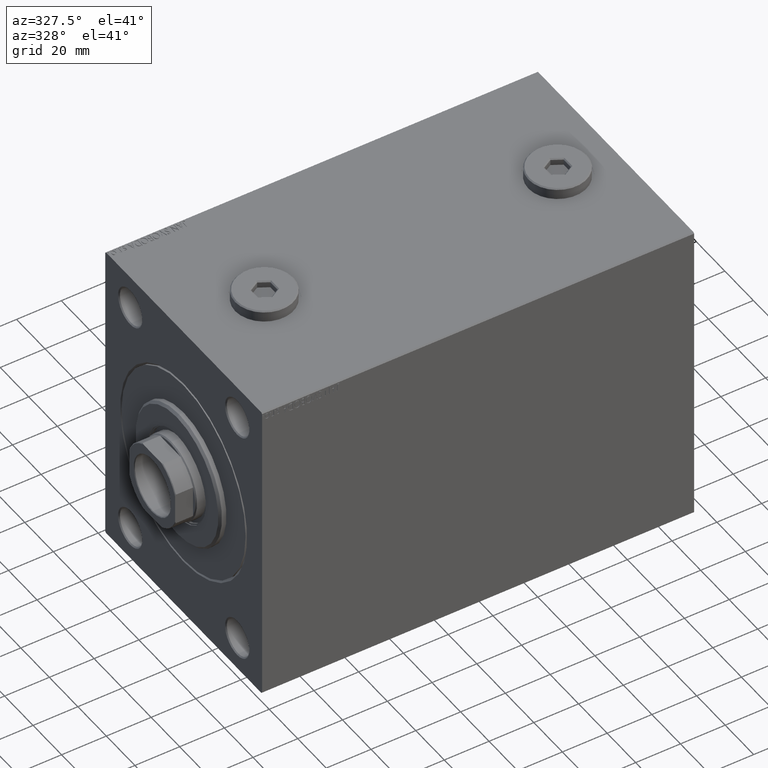
[diagram: clean part render]
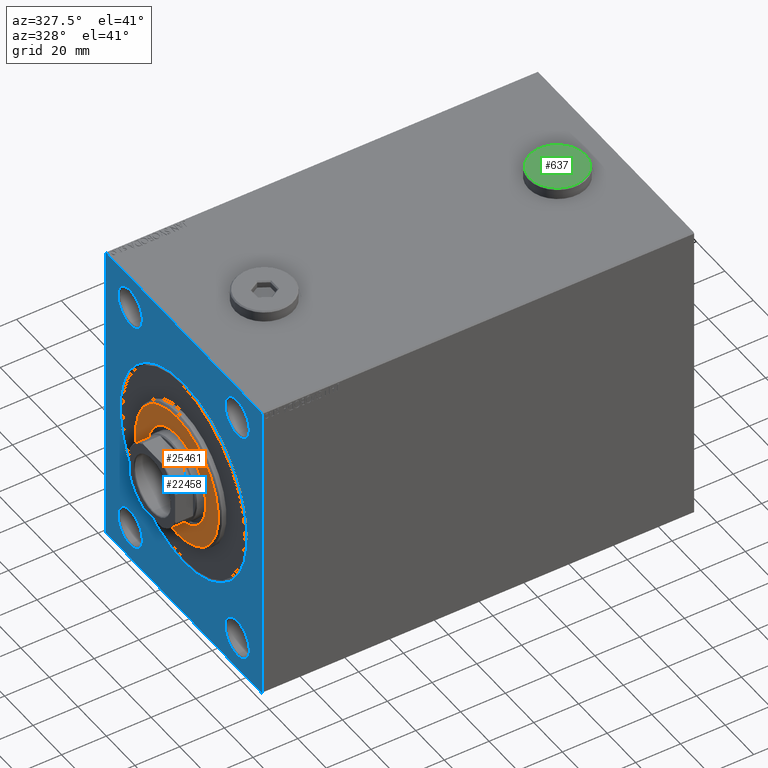
[diagram: same view with three faces highlighted in distinct colors, each labeled with its STEP entity id]
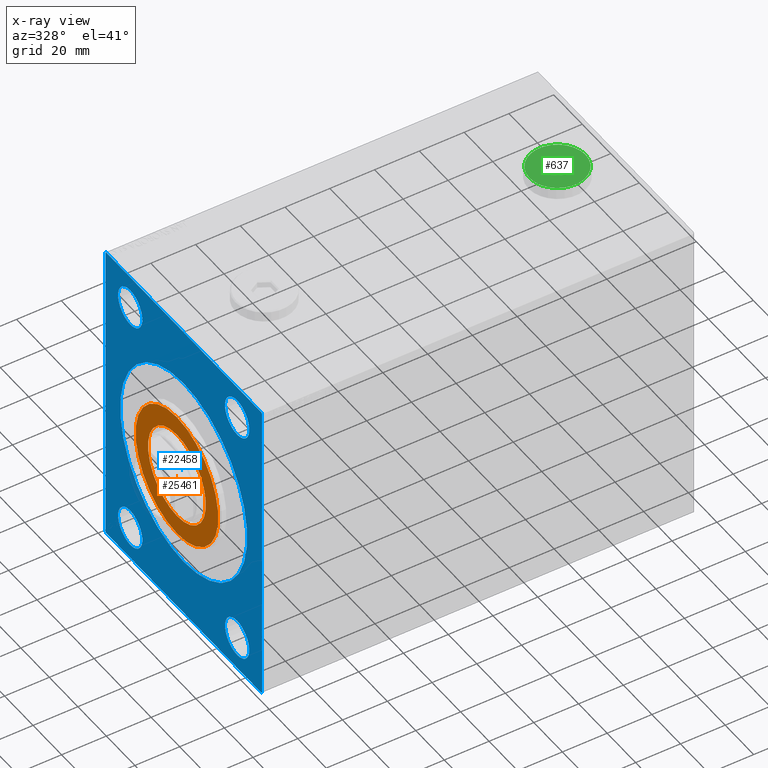
[diagram: x-ray of the same camera — body ghosted, the three highlighted faces saturated]
A machine part, auxiliary view with three faces highlighted in distinct colors.
The next image is the same camera in x-ray (body ghosted, the three faces saturated) — at least one of them is partly hidden behind the body in this view.
Their STEP definitions:

[orange] entity #25461 — the highlighted planar face has unit normal (-1, 0, 0).
#613 = AXIS2_PLACEMENT_3D ( 'NONE', #18471, #31902, #10842 ) ;
#742 = CIRCLE ( 'NONE', #6647, 20.25000000000000000 ) ;
#1898 = EDGE_CURVE ( 'NONE', #32579, #18394, #27860, .T. ) ;
#2217 = EDGE_CURVE ( 'NONE', #10055, #18712, #15296, .T. ) ;
#2519 = AXIS2_PLACEMENT_3D ( 'NONE', #30121, #37722, #12539 ) ;
#5453 = DIRECTION ( 'NONE',  ( 0.000000000000000000, 0.000000000000000000, -1.000000000000000000 ) ) ;
#6302 = EDGE_LOOP ( 'NONE', ( #41375, #17548 ) ) ;
#6647 = AXIS2_PLACEMENT_3D ( 'NONE', #22111, #8932, #5453 ) ;
#8932 = DIRECTION ( 'NONE',  ( 1.000000000000000000, 0.000000000000000000, 0.000000000000000000 ) ) ;
#9088 = DIRECTION ( 'NONE',  ( 1.000000000000000000, -0.000000000000000000, 0.000000000000000000 ) ) ;
#9521 = FACE_BOUND ( 'NONE', #6302, .T. ) ;
#10055 = VERTEX_POINT ( 'NONE', #13254 ) ;
#10842 = DIRECTION ( 'NONE',  ( 0.000000000000000000, 0.000000000000000000, -1.000000000000000000 ) ) ;
#12539 = DIRECTION ( 'NONE',  ( 0.000000000000000000, 0.000000000000000000, -1.000000000000000000 ) ) ;
#13254 = CARTESIAN_POINT ( 'NONE',  ( 3.000000000000000000, 0.000000000000000000, -20.25000000000000000 ) ) ;
#13793 = ORIENTED_EDGE ( 'NONE', *, *, #1898, .T. ) ;
#14477 = EDGE_CURVE ( 'NONE', #18712, #10055, #742, .T. ) ;
#15296 = CIRCLE ( 'NONE', #38934, 20.25000000000000000 ) ;
#17548 = ORIENTED_EDGE ( 'NONE', *, *, #14477, .F. ) ;
#18394 = VERTEX_POINT ( 'NONE', #38896 ) ;
#18471 = CARTESIAN_POINT ( 'NONE',  ( 3.000000000000000000, 0.000000000000000000, 0.000000000000000000 ) ) ;
#18712 = VERTEX_POINT ( 'NONE', #30938 ) ;
#20560 = CARTESIAN_POINT ( 'NONE',  ( 3.000000000000000000, 0.000000000000000000, 0.000000000000000000 ) ) ;
#22111 = CARTESIAN_POINT ( 'NONE',  ( 3.000000000000000000, 0.000000000000000000, 0.000000000000000000 ) ) ;
#22903 = CARTESIAN_POINT ( 'NONE',  ( 3.000000000000000000, 3.612708057484691604E-15, -28.99999999999999289 ) ) ;
#23426 = AXIS2_PLACEMENT_3D ( 'NONE', #37964, #9088, #40531 ) ;
#24738 = DIRECTION ( 'NONE',  ( 1.000000000000000000, 0.000000000000000000, 0.000000000000000000 ) ) ;
#25461 = ADVANCED_FACE ( 'NONE', ( #43971, #9521 ), #33584, .T. ) ;
#27860 = CIRCLE ( 'NONE', #23426, 28.99999999999999289 ) ;
#30121 = CARTESIAN_POINT ( 'NONE',  ( 3.000000000000000000, 0.000000000000000000, 0.000000000000000000 ) ) ;
#30938 = CARTESIAN_POINT ( 'NONE',  ( 3.000000000000000000, 2.479909768273390300E-15, 20.25000000000000000 ) ) ;
#31902 = DIRECTION ( 'NONE',  ( 1.000000000000000000, -0.000000000000000000, 0.000000000000000000 ) ) ;
#32579 = VERTEX_POINT ( 'NONE', #22903 ) ;
#33584 = PLANE ( 'NONE',  #2519 ) ;
#37504 = CIRCLE ( 'NONE', #613, 28.99999999999999289 ) ;
#37722 = DIRECTION ( 'NONE',  ( 1.000000000000000000, -0.000000000000000000, 0.000000000000000000 ) ) ;
#37964 = CARTESIAN_POINT ( 'NONE',  ( 3.000000000000000000, 0.000000000000000000, 0.000000000000000000 ) ) ;
#38896 = CARTESIAN_POINT ( 'NONE',  ( 3.000000000000000000, 0.000000000000000000, 28.99999999999999289 ) ) ;
#38934 = AXIS2_PLACEMENT_3D ( 'NONE', #20560, #24738, #42290 ) ;
#39113 = EDGE_LOOP ( 'NONE', ( #43557, #13793 ) ) ;
#40531 = DIRECTION ( 'NONE',  ( 0.000000000000000000, 0.000000000000000000, -1.000000000000000000 ) ) ;
#41375 = ORIENTED_EDGE ( 'NONE', *, *, #2217, .F. ) ;
#42290 = DIRECTION ( 'NONE',  ( 0.000000000000000000, 0.000000000000000000, -1.000000000000000000 ) ) ;
#42967 = EDGE_CURVE ( 'NONE', #18394, #32579, #37504, .T. ) ;
#43557 = ORIENTED_EDGE ( 'NONE', *, *, #42967, .T. ) ;
#43971 = FACE_OUTER_BOUND ( 'NONE', #39113, .T. ) ;

[blue] entity #22458 — the highlighted planar face has unit normal (1, 0, 0).
#99 = DIRECTION ( 'NONE',  ( 0.000000000000000000, 0.000000000000000000, -1.000000000000000000 ) ) ;
#1010 = EDGE_LOOP ( 'NONE', ( #11575, #20941 ) ) ;
#1025 = EDGE_LOOP ( 'NONE', ( #27797, #28827 ) ) ;
#1035 = VECTOR ( 'NONE', #16923, 1000.000000000000000 ) ;
#1544 = ORIENTED_EDGE ( 'NONE', *, *, #23967, .F. ) ;
#1575 = AXIS2_PLACEMENT_3D ( 'NONE', #17388, #38660, #6995 ) ;
#1642 = CIRCLE ( 'NONE', #19351, 44.49999999999995737 ) ;
#2286 = DIRECTION ( 'NONE',  ( 0.000000000000000000, 1.000000000000000000, 1.261617073437677752E-16 ) ) ;
#2428 = VERTEX_POINT ( 'NONE', #32609 ) ;
#2933 = CARTESIAN_POINT ( 'NONE',  ( 0.000000000000000000, 0.000000000000000000, 0.000000000000000000 ) ) ;
#3054 = DIRECTION ( 'NONE',  ( 1.000000000000000000, 0.000000000000000000, 0.000000000000000000 ) ) ;
#3310 = CARTESIAN_POINT ( 'NONE',  ( 0.000000000000000000, -55.00000000000000000, 69.49999999999997158 ) ) ;
#3543 = CARTESIAN_POINT ( 'NONE',  ( 0.000000000000000000, -37.49999999999999289, 55.00000000000000711 ) ) ;
#3569 = DIRECTION ( 'NONE',  ( 1.000000000000000000, 0.000000000000000000, 0.000000000000000000 ) ) ;
#3974 = ORIENTED_EDGE ( 'NONE', *, *, #23460, .T. ) ;
#4300 = CARTESIAN_POINT ( 'NONE',  ( 0.000000000000000000, -37.49999999999999289, -54.99999999999999289 ) ) ;
#4425 = CIRCLE ( 'NONE', #27321, 8.500000000000007105 ) ;
#4508 = ORIENTED_EDGE ( 'NONE', *, *, #23666, .F. ) ;
#4574 = CARTESIAN_POINT ( 'NONE',  ( 0.000000000000000000, -55.00000000000000000, -69.50000000000000000 ) ) ;
#5718 = PLANE ( 'NONE',  #37170 ) ;
#6201 = CARTESIAN_POINT ( 'NONE',  ( 0.000000000000000000, 54.49999999999996447, 70.00000000000001421 ) ) ;
#6371 = EDGE_CURVE ( 'NONE', #23874, #42671, #30785, .T. ) ;
#6393 = FACE_BOUND ( 'NONE', #8249, .T. ) ;
#6562 = ORIENTED_EDGE ( 'NONE', *, *, #24139, .T. ) ;
#6649 = ORIENTED_EDGE ( 'NONE', *, *, #8415, .T. ) ;
#6700 = DIRECTION ( 'NONE',  ( 0.000000000000000000, 0.000000000000000000, -1.000000000000000000 ) ) ;
#6995 = DIRECTION ( 'NONE',  ( 0.000000000000000000, 0.000000000000000000, -1.000000000000000000 ) ) ;
#7171 = AXIS2_PLACEMENT_3D ( 'NONE', #4300, #28354, #11681 ) ;
#7400 = VERTEX_POINT ( 'NONE', #43705 ) ;
#7815 = CARTESIAN_POINT ( 'NONE',  ( 0.000000000000000000, 55.00000000000000711, -69.99999999999998579 ) ) ;
#7913 = DIRECTION ( 'NONE',  ( 0.000000000000000000, 0.000000000000000000, -1.000000000000000000 ) ) ;
#8136 = ORIENTED_EDGE ( 'NONE', *, *, #24119, .T. ) ;
#8249 = EDGE_LOOP ( 'NONE', ( #6649, #6562 ) ) ;
#8415 = EDGE_CURVE ( 'NONE', #16063, #7400, #4425, .T. ) ;
#8466 = DIRECTION ( 'NONE',  ( 0.000000000000000000, 0.000000000000000000, -1.000000000000000000 ) ) ;
#8861 = EDGE_CURVE ( 'NONE', #40252, #42671, #12005, .T. ) ;
#9187 = FACE_OUTER_BOUND ( 'NONE', #14493, .T. ) ;
#9404 = EDGE_CURVE ( 'NONE', #11180, #20342, #39125, .T. ) ;
#9640 = DIRECTION ( 'NONE',  ( 0.000000000000000000, 0.000000000000000000, -1.000000000000000000 ) ) ;
#9929 = CIRCLE ( 'NONE', #42413, 8.500000000000007105 ) ;
#10157 = CARTESIAN_POINT ( 'NONE',  ( 0.000000000000000000, 37.50000000000000000, 55.00000000000000711 ) ) ;
#10521 = DIRECTION ( 'NONE',  ( 1.000000000000000000, 0.000000000000000000, 0.000000000000000000 ) ) ;
#10710 = AXIS2_PLACEMENT_3D ( 'NONE', #3543, #21778, #31522 ) ;
#11180 = VERTEX_POINT ( 'NONE', #21940 ) ;
#11360 = VECTOR ( 'NONE', #6700, 1000.000000000000000 ) ;
#11575 = ORIENTED_EDGE ( 'NONE', *, *, #18496, .T. ) ;
#11681 = DIRECTION ( 'NONE',  ( 0.000000000000000000, 0.000000000000000000, -1.000000000000000000 ) ) ;
#12005 = LINE ( 'NONE', #36971, #36923 ) ;
#12642 = CARTESIAN_POINT ( 'NONE',  ( 0.000000000000000000, 37.50000000000000000, -46.49999999999998579 ) ) ;
#13011 = VERTEX_POINT ( 'NONE', #33617 ) ;
#13201 = DIRECTION ( 'NONE',  ( 0.000000000000000000, -0.7071067811865230368, -0.7071067811865721087 ) ) ;
#13449 = CARTESIAN_POINT ( 'NONE',  ( 0.000000000000000000, 54.99999999999999289, 70.00000000000001421 ) ) ;
#14052 = DIRECTION ( 'NONE',  ( -0.000000000000000000, 0.7071067811865672237, -0.7071067811865279218 ) ) ;
#14068 = AXIS2_PLACEMENT_3D ( 'NONE', #18371, #10521, #29022 ) ;
#14280 = LINE ( 'NONE', #6201, #44033 ) ;
#14493 = EDGE_LOOP ( 'NONE', ( #1544, #32695, #4508, #14737, #17379, #40226, #14613, #3974 ) ) ;
#14546 = CARTESIAN_POINT ( 'NONE',  ( 0.000000000000000000, 0.000000000000000000, 44.49999999999995737 ) ) ;
#14605 = ORIENTED_EDGE ( 'NONE', *, *, #31227, .T. ) ;
#14613 = ORIENTED_EDGE ( 'NONE', *, *, #8861, .F. ) ;
#14737 = ORIENTED_EDGE ( 'NONE', *, *, #38198, .T. ) ;
#15667 = EDGE_CURVE ( 'NONE', #39339, #24929, #16287, .T. ) ;
#15929 = EDGE_CURVE ( 'NONE', #13011, #42414, #36268, .T. ) ;
#16063 = VERTEX_POINT ( 'NONE', #40712 ) ;
#16287 = CIRCLE ( 'NONE', #14068, 8.500000000000007105 ) ;
#16923 = DIRECTION ( 'NONE',  ( 0.000000000000000000, -1.000000000000000000, -1.261617073437677999E-16 ) ) ;
#17005 = ORIENTED_EDGE ( 'NONE', *, *, #15667, .T. ) ;
#17136 = DIRECTION ( 'NONE',  ( 0.000000000000000000, 0.000000000000000000, -1.000000000000000000 ) ) ;
#17379 = ORIENTED_EDGE ( 'NONE', *, *, #44476, .F. ) ;
#17388 = CARTESIAN_POINT ( 'NONE',  ( 0.000000000000000000, -37.49999999999999289, -54.99999999999999289 ) ) ;
#17694 = CARTESIAN_POINT ( 'NONE',  ( 0.000000000000000000, -54.49999999999997158, -70.00000000000000000 ) ) ;
#18052 = CARTESIAN_POINT ( 'NONE',  ( 0.000000000000000000, 37.50000000000000000, 55.00000000000000711 ) ) ;
#18313 = DIRECTION ( 'NONE',  ( -0.000000000000000000, 0.7071067811865328068, 0.7071067811865622277 ) ) ;
#18371 = CARTESIAN_POINT ( 'NONE',  ( 0.000000000000000000, 37.50000000000000000, -54.99999999999999289 ) ) ;
#18454 = LINE ( 'NONE', #7815, #41216 ) ;
#18496 = EDGE_CURVE ( 'NONE', #34344, #26943, #1642, .T. ) ;
#18624 = CARTESIAN_POINT ( 'NONE',  ( 0.000000000000000000, 37.50000000000000000, -63.50000000000000000 ) ) ;
#18724 = CIRCLE ( 'NONE', #30542, 8.500000000000007105 ) ;
#18841 = VERTEX_POINT ( 'NONE', #4574 ) ;
#19351 = AXIS2_PLACEMENT_3D ( 'NONE', #24578, #31749, #38662 ) ;
#19812 = FACE_BOUND ( 'NONE', #1025, .T. ) ;
#20342 = VERTEX_POINT ( 'NONE', #24847 ) ;
#20558 = DIRECTION ( 'NONE',  ( 0.000000000000000000, 0.000000000000000000, -1.000000000000000000 ) ) ;
#20941 = ORIENTED_EDGE ( 'NONE', *, *, #32113, .T. ) ;
#20958 = VECTOR ( 'NONE', #26952, 1000.000000000000000 ) ;
#21026 = CIRCLE ( 'NONE', #10710, 8.500000000000007105 ) ;
#21104 = CARTESIAN_POINT ( 'NONE',  ( 0.000000000000000000, 0.000000000000000000, 0.000000000000000000 ) ) ;
#21778 = DIRECTION ( 'NONE',  ( 1.000000000000000000, 0.000000000000000000, 0.000000000000000000 ) ) ;
#21940 = CARTESIAN_POINT ( 'NONE',  ( 0.000000000000000000, -55.00000000000000000, 69.49999999999997158 ) ) ;
#22237 = EDGE_LOOP ( 'NONE', ( #25955, #17005 ) ) ;
#22458 = ADVANCED_FACE ( 'NONE', ( #23515, #19812, #38060, #6393, #40846, #9187 ), #5718, .F. ) ;
#22497 = CARTESIAN_POINT ( 'NONE',  ( 0.000000000000000000, -37.49999999999999289, -46.49999999999998579 ) ) ;
#22528 = VERTEX_POINT ( 'NONE', #41067 ) ;
#23017 = CARTESIAN_POINT ( 'NONE',  ( 0.000000000000000000, 54.99999999999999289, 69.50000000000001421 ) ) ;
#23438 = VERTEX_POINT ( 'NONE', #23017 ) ;
#23460 = EDGE_CURVE ( 'NONE', #40252, #18841, #27626, .T. ) ;
#23515 = FACE_BOUND ( 'NONE', #1010, .T. ) ;
#23666 = EDGE_CURVE ( 'NONE', #33137, #20342, #45117, .T. ) ;
#23874 = VERTEX_POINT ( 'NONE', #40918 ) ;
#23967 = EDGE_CURVE ( 'NONE', #11180, #18841, #32757, .T. ) ;
#24119 = EDGE_CURVE ( 'NONE', #2428, #22528, #43101, .T. ) ;
#24139 = EDGE_CURVE ( 'NONE', #7400, #16063, #18724, .T. ) ;
#24267 = DIRECTION ( 'NONE',  ( 1.000000000000000000, 0.000000000000000000, 0.000000000000000000 ) ) ;
#24272 = VECTOR ( 'NONE', #13201, 1000.000000000000000 ) ;
#24342 = VECTOR ( 'NONE', #18313, 1000.000000000000000 ) ;
#24578 = CARTESIAN_POINT ( 'NONE',  ( 0.000000000000000000, 0.000000000000000000, 0.000000000000000000 ) ) ;
#24847 = CARTESIAN_POINT ( 'NONE',  ( 0.000000000000000000, -54.49999999999999289, 70.00000000000000000 ) ) ;
#24929 = VERTEX_POINT ( 'NONE', #12642 ) ;
#25955 = ORIENTED_EDGE ( 'NONE', *, *, #26126, .T. ) ;
#26126 = EDGE_CURVE ( 'NONE', #24929, #39339, #9929, .T. ) ;
#26160 = CARTESIAN_POINT ( 'NONE',  ( 0.000000000000000000, 54.50000000000001421, -69.99999999999998579 ) ) ;
#26277 = AXIS2_PLACEMENT_3D ( 'NONE', #21104, #28515, #7913 ) ;
#26943 = VERTEX_POINT ( 'NONE', #30879 ) ;
#26952 = DIRECTION ( 'NONE',  ( -0.000000000000000000, -0.7071067811865672237, 0.7071067811865279218 ) ) ;
#27321 = AXIS2_PLACEMENT_3D ( 'NONE', #18052, #3054, #17136 ) ;
#27626 = LINE ( 'NONE', #45395, #20958 ) ;
#27676 = DIRECTION ( 'NONE',  ( 1.000000000000000000, 0.000000000000000000, 0.000000000000000000 ) ) ;
#27797 = ORIENTED_EDGE ( 'NONE', *, *, #41072, .T. ) ;
#28354 = DIRECTION ( 'NONE',  ( 1.000000000000000000, 0.000000000000000000, 0.000000000000000000 ) ) ;
#28515 = DIRECTION ( 'NONE',  ( 1.000000000000000000, 0.000000000000000000, 0.000000000000000000 ) ) ;
#28827 = ORIENTED_EDGE ( 'NONE', *, *, #15929, .T. ) ;
#29022 = DIRECTION ( 'NONE',  ( 0.000000000000000000, 0.000000000000000000, -1.000000000000000000 ) ) ;
#30139 = CARTESIAN_POINT ( 'NONE',  ( 0.000000000000000000, 54.49999999999996447, 70.00000000000001421 ) ) ;
#30542 = AXIS2_PLACEMENT_3D ( 'NONE', #10157, #24267, #8466 ) ;
#30682 = CIRCLE ( 'NONE', #26277, 44.49999999999995737 ) ;
#30785 = LINE ( 'NONE', #44870, #24272 ) ;
#30879 = CARTESIAN_POINT ( 'NONE',  ( 0.000000000000000000, 5.449678256205716459E-15, -44.49999999999995737 ) ) ;
#31227 = EDGE_CURVE ( 'NONE', #22528, #2428, #21026, .T. ) ;
#31442 = CARTESIAN_POINT ( 'NONE',  ( 0.000000000000000000, -37.49999999999999289, 55.00000000000000711 ) ) ;
#31522 = DIRECTION ( 'NONE',  ( 0.000000000000000000, 0.000000000000000000, -1.000000000000000000 ) ) ;
#31749 = DIRECTION ( 'NONE',  ( 1.000000000000000000, 0.000000000000000000, 0.000000000000000000 ) ) ;
#32113 = EDGE_CURVE ( 'NONE', #26943, #34344, #30682, .T. ) ;
#32609 = CARTESIAN_POINT ( 'NONE',  ( 0.000000000000000000, -37.49999999999999289, 63.50000000000001421 ) ) ;
#32695 = ORIENTED_EDGE ( 'NONE', *, *, #9404, .T. ) ;
#32757 = LINE ( 'NONE', #42055, #11360 ) ;
#33137 = VERTEX_POINT ( 'NONE', #30139 ) ;
#33617 = CARTESIAN_POINT ( 'NONE',  ( 0.000000000000000000, -37.49999999999999289, -63.50000000000000000 ) ) ;
#34344 = VERTEX_POINT ( 'NONE', #14546 ) ;
#35002 = AXIS2_PLACEMENT_3D ( 'NONE', #31442, #45507, #20558 ) ;
#35237 = CARTESIAN_POINT ( 'NONE',  ( 0.000000000000000000, 37.50000000000000000, -54.99999999999999289 ) ) ;
#36268 = CIRCLE ( 'NONE', #1575, 8.500000000000007105 ) ;
#36923 = VECTOR ( 'NONE', #2286, 1000.000000000000000 ) ;
#36971 = CARTESIAN_POINT ( 'NONE',  ( 0.000000000000000000, -55.00000000000000000, -70.00000000000000000 ) ) ;
#37170 = AXIS2_PLACEMENT_3D ( 'NONE', #2933, #27676, #9640 ) ;
#38060 = FACE_BOUND ( 'NONE', #45350, .T. ) ;
#38182 = CIRCLE ( 'NONE', #7171, 8.500000000000007105 ) ;
#38198 = EDGE_CURVE ( 'NONE', #33137, #23438, #14280, .T. ) ;
#38660 = DIRECTION ( 'NONE',  ( 1.000000000000000000, 0.000000000000000000, 0.000000000000000000 ) ) ;
#38662 = DIRECTION ( 'NONE',  ( 0.000000000000000000, 0.000000000000000000, -1.000000000000000000 ) ) ;
#39125 = LINE ( 'NONE', #3310, #24342 ) ;
#39258 = DIRECTION ( 'NONE',  ( 0.000000000000000000, -9.912705577010325549E-17, 1.000000000000000000 ) ) ;
#39339 = VERTEX_POINT ( 'NONE', #18624 ) ;
#40226 = ORIENTED_EDGE ( 'NONE', *, *, #6371, .T. ) ;
#40252 = VERTEX_POINT ( 'NONE', #17694 ) ;
#40712 = CARTESIAN_POINT ( 'NONE',  ( 0.000000000000000000, 37.50000000000000000, 63.50000000000001421 ) ) ;
#40846 = FACE_BOUND ( 'NONE', #22237, .T. ) ;
#40918 = CARTESIAN_POINT ( 'NONE',  ( 0.000000000000000000, 55.00000000000000711, -69.49999999999997158 ) ) ;
#41067 = CARTESIAN_POINT ( 'NONE',  ( 0.000000000000000000, -37.49999999999999289, 46.50000000000000000 ) ) ;
#41072 = EDGE_CURVE ( 'NONE', #42414, #13011, #38182, .T. ) ;
#41216 = VECTOR ( 'NONE', #39258, 1000.000000000000000 ) ;
#42055 = CARTESIAN_POINT ( 'NONE',  ( 0.000000000000000000, -55.00000000000000000, 70.00000000000000000 ) ) ;
#42413 = AXIS2_PLACEMENT_3D ( 'NONE', #35237, #3569, #99 ) ;
#42414 = VERTEX_POINT ( 'NONE', #22497 ) ;
#42671 = VERTEX_POINT ( 'NONE', #26160 ) ;
#43101 = CIRCLE ( 'NONE', #35002, 8.500000000000007105 ) ;
#43705 = CARTESIAN_POINT ( 'NONE',  ( 0.000000000000000000, 37.50000000000000000, 46.50000000000000000 ) ) ;
#44033 = VECTOR ( 'NONE', #14052, 1000.000000000000000 ) ;
#44476 = EDGE_CURVE ( 'NONE', #23874, #23438, #18454, .T. ) ;
#44870 = CARTESIAN_POINT ( 'NONE',  ( 0.000000000000000000, 55.00000000000000711, -69.49999999999997158 ) ) ;
#45117 = LINE ( 'NONE', #13449, #1035 ) ;
#45350 = EDGE_LOOP ( 'NONE', ( #8136, #14605 ) ) ;
#45395 = CARTESIAN_POINT ( 'NONE',  ( 0.000000000000000000, -54.49999999999997158, -70.00000000000000000 ) ) ;
#45507 = DIRECTION ( 'NONE',  ( 1.000000000000000000, 0.000000000000000000, 0.000000000000000000 ) ) ;

[green] entity #637 — the highlighted planar face has unit normal (0, 0, 1).
#28 = ORIENTED_EDGE ( 'NONE', *, *, #28273, .T. ) ;
#543 = EDGE_CURVE ( 'NONE', #3738, #11918, #32067, .T. ) ;
#637 = ADVANCED_FACE ( 'NONE', ( #1294, #22783 ), #11242, .T. ) ;
#785 = ORIENTED_EDGE ( 'NONE', *, *, #543, .T. ) ;
#1189 = ORIENTED_EDGE ( 'NONE', *, *, #8055, .T. ) ;
#1294 = FACE_BOUND ( 'NONE', #37183, .T. ) ;
#1540 = CARTESIAN_POINT ( 'NONE',  ( -4.833333333333340143, 2.501851166488380240, 5.000000000000000000 ) ) ;
#1670 = AXIS2_PLACEMENT_3D ( 'NONE', #9184, #33929, #30011 ) ;
#2056 = DIRECTION ( 'NONE',  ( 1.000000000000000000, 0.000000000000000000, 0.000000000000000000 ) ) ;
#2772 = VERTEX_POINT ( 'NONE', #30165 ) ;
#3656 = ORIENTED_EDGE ( 'NONE', *, *, #15618, .T. ) ;
#3738 = VERTEX_POINT ( 'NONE', #31127 ) ;
#4051 = VERTEX_POINT ( 'NONE', #38618 ) ;
#4718 = CARTESIAN_POINT ( 'NONE',  ( 4.583333333333339255, 2.934863868380602092, 5.000000000000000000 ) ) ;
#4957 = CARTESIAN_POINT ( 'NONE',  ( 4.833333333333341919, -2.790526301083194216, 5.000000000000000000 ) ) ;
#4990 = EDGE_CURVE ( 'NONE', #7569, #45592, #10032, .T. ) ;
#5811 = CARTESIAN_POINT ( 'NONE',  ( 0.2500000000000015543, -5.436715034868981888, 5.000000000000000000 ) ) ;
#7569 = VERTEX_POINT ( 'NONE', #37001 ) ;
#7996 = DIRECTION ( 'NONE',  ( 0.000000000000000000, 0.000000000000000000, 1.000000000000000000 ) ) ;
#8055 = EDGE_CURVE ( 'NONE', #8313, #3738, #24610, .T. ) ;
#8313 = VERTEX_POINT ( 'NONE', #41637 ) ;
#9184 = CARTESIAN_POINT ( 'NONE',  ( 0.000000000000000000, 0.000000000000000000, 5.000000000000000000 ) ) ;
#10032 = LINE ( 'NONE', #34103, #40477 ) ;
#10426 = CARTESIAN_POINT ( 'NONE',  ( -12.50000000000001066, 0.000000000000000000, 5.000000000000000000 ) ) ;
#11242 = PLANE ( 'NONE',  #14505 ) ;
#11693 = DIRECTION ( 'NONE',  ( 1.000000000000000000, 0.000000000000000000, -0.000000000000000000 ) ) ;
#11869 = CIRCLE ( 'NONE', #18501, 12.50000000000001066 ) ;
#11918 = VERTEX_POINT ( 'NONE', #4957 ) ;
#11991 = EDGE_LOOP ( 'NONE', ( #3656, #39765 ) ) ;
#12298 = EDGE_CURVE ( 'NONE', #45592, #4051, #25599, .T. ) ;
#12907 = CARTESIAN_POINT ( 'NONE',  ( 0.000000000000000000, 0.000000000000000000, 5.000000000000000000 ) ) ;
#12974 = DIRECTION ( 'NONE',  ( 0.8660254037844388186, 0.4999999999999997780, 0.000000000000000000 ) ) ;
#13719 = ORIENTED_EDGE ( 'NONE', *, *, #12298, .T. ) ;
#14505 = AXIS2_PLACEMENT_3D ( 'NONE', #33204, #7996, #11693 ) ;
#14701 = CARTESIAN_POINT ( 'NONE',  ( 4.833333333333341919, -2.501851166488378908, 5.000000000000000000 ) ) ;
#15102 = DIRECTION ( 'NONE',  ( 0.8660254037844387076, -0.4999999999999998890, 0.000000000000000000 ) ) ;
#15618 = EDGE_CURVE ( 'NONE', #35994, #2772, #11869, .T. ) ;
#15991 = VECTOR ( 'NONE', #28367, 1000.000000000000000 ) ;
#16437 = LINE ( 'NONE', #27090, #32072 ) ;
#18501 = AXIS2_PLACEMENT_3D ( 'NONE', #12907, #27023, #2056 ) ;
#19790 = EDGE_CURVE ( 'NONE', #2772, #35994, #26767, .T. ) ;
#22783 = FACE_OUTER_BOUND ( 'NONE', #11991, .T. ) ;
#23607 = DIRECTION ( 'NONE',  ( -0.8660254037844387076, -0.4999999999999998335, 0.000000000000000000 ) ) ;
#23648 = CARTESIAN_POINT ( 'NONE',  ( -4.833333333333340143, -2.790526301083195104, 5.000000000000000000 ) ) ;
#24610 = LINE ( 'NONE', #4718, #39811 ) ;
#25599 = LINE ( 'NONE', #1540, #31007 ) ;
#26248 = VECTOR ( 'NONE', #23607, 1000.000000000000000 ) ;
#26626 = ORIENTED_EDGE ( 'NONE', *, *, #4990, .T. ) ;
#26767 = CIRCLE ( 'NONE', #1670, 12.50000000000001066 ) ;
#27023 = DIRECTION ( 'NONE',  ( 0.000000000000000000, 0.000000000000000000, 1.000000000000000000 ) ) ;
#27090 = CARTESIAN_POINT ( 'NONE',  ( -0.2500000000000021094, 5.436715034868981000, 5.000000000000000000 ) ) ;
#28273 = EDGE_CURVE ( 'NONE', #4051, #8313, #16437, .T. ) ;
#28367 = DIRECTION ( 'NONE',  ( 0.000000000000000000, -1.000000000000000000, 0.000000000000000000 ) ) ;
#30011 = DIRECTION ( 'NONE',  ( 1.000000000000000000, 0.000000000000000000, 0.000000000000000000 ) ) ;
#30165 = CARTESIAN_POINT ( 'NONE',  ( 12.50000000000001066, 1.561424668912876097E-15, 5.000000000000000000 ) ) ;
#31007 = VECTOR ( 'NONE', #43608, 1000.000000000000000 ) ;
#31088 = DIRECTION ( 'NONE',  ( -0.8660254037844385966, 0.5000000000000001110, 0.000000000000000000 ) ) ;
#31127 = CARTESIAN_POINT ( 'NONE',  ( 4.833333333333341919, 2.790526301083194216, 5.000000000000000000 ) ) ;
#31401 = EDGE_CURVE ( 'NONE', #11918, #7569, #34024, .T. ) ;
#32067 = LINE ( 'NONE', #14701, #15991 ) ;
#32072 = VECTOR ( 'NONE', #12974, 1000.000000000000114 ) ;
#33204 = CARTESIAN_POINT ( 'NONE',  ( 0.000000000000000000, 0.000000000000000000, 5.000000000000000000 ) ) ;
#33929 = DIRECTION ( 'NONE',  ( 0.000000000000000000, 0.000000000000000000, 1.000000000000000000 ) ) ;
#34024 = LINE ( 'NONE', #5811, #26248 ) ;
#34103 = CARTESIAN_POINT ( 'NONE',  ( -4.583333333333337478, -2.934863868380603424, 5.000000000000000000 ) ) ;
#35994 = VERTEX_POINT ( 'NONE', #10426 ) ;
#37001 = CARTESIAN_POINT ( 'NONE',  ( -1.883403334290581714E-15, -5.581052602166390209, 5.000000000000000000 ) ) ;
#37183 = EDGE_LOOP ( 'NONE', ( #13719, #28, #1189, #785, #40711, #26626 ) ) ;
#38618 = CARTESIAN_POINT ( 'NONE',  ( -4.833333333333340143, 2.790526301083195104, 5.000000000000000000 ) ) ;
#39765 = ORIENTED_EDGE ( 'NONE', *, *, #19790, .T. ) ;
#39811 = VECTOR ( 'NONE', #15102, 1000.000000000000000 ) ;
#40477 = VECTOR ( 'NONE', #31088, 1000.000000000000114 ) ;
#40711 = ORIENTED_EDGE ( 'NONE', *, *, #31401, .T. ) ;
#41637 = CARTESIAN_POINT ( 'NONE',  ( 1.144664513637780713E-15, 5.581052602166389320, 5.000000000000000000 ) ) ;
#43608 = DIRECTION ( 'NONE',  ( 0.000000000000000000, 1.000000000000000000, 0.000000000000000000 ) ) ;
#45592 = VERTEX_POINT ( 'NONE', #23648 ) ;